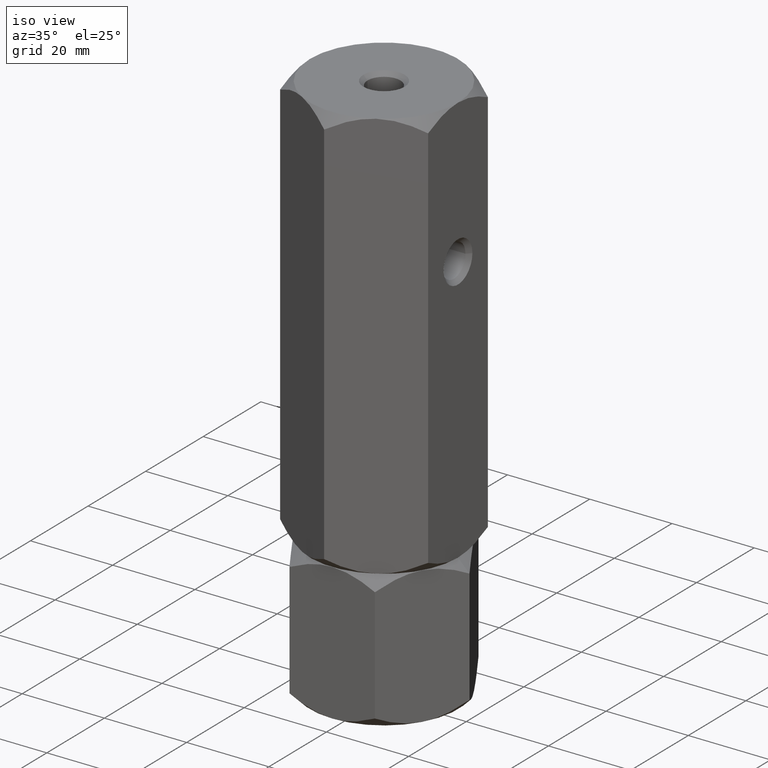
[diagram: clean part render]
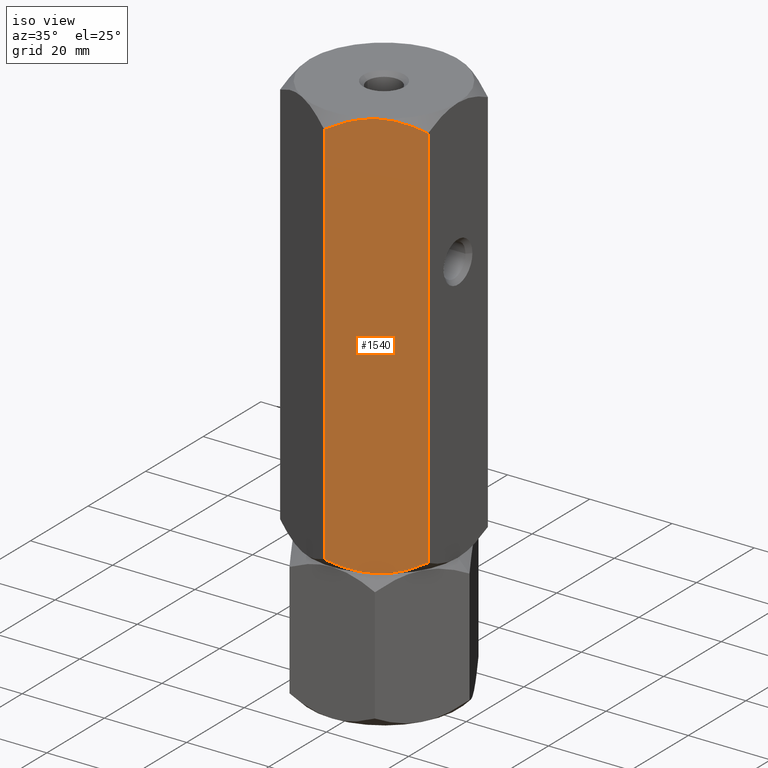
[diagram: same view with one face highlighted and labeled with its STEP entity id]
A machine part, iso view. The second image highlights one B-rep face of the part: STEP entity #1540.
In plain terms, the highlighted planar face has unit normal (-0.5, 0.866, 0).
Its self-contained STEP definition (entity closure, byte-faithful):
#10 = CARTESIAN_POINT ( 'NONE',  ( 15.14539811114618750, -12.04041001437223102, 34.61071641122316578 ) ) ;
#29 = ORIENTED_EDGE ( 'NONE', *, *, #1813, .F. ) ;
#61 = B_SPLINE_CURVE_WITH_KNOTS ( 'NONE', 3,
 ( #708, #1982, #1191, #900, #1354, #1508, #1673, #106, #85, #585 ),
 .UNSPECIFIED., .F., .F.,
 ( 4, 2, 2, 2, 4 ),
 ( 2.544307986837308371E-07, 0.005386537354063076870, 0.008079678815695273339, 0.009426249546511372007, 0.01077282027732746894 ),
 .UNSPECIFIED. ) ;
#66 = VECTOR ( 'NONE', #655, 1000.000000000000000 ) ;
#85 = CARTESIAN_POINT ( 'NONE',  ( 8.605874323383771340, -15.81600583360882872, 133.3333333333333428 ) ) ;
#87 = FACE_OUTER_BOUND ( 'NONE', #443, .T. ) ;
#106 = CARTESIAN_POINT ( 'NONE',  ( 8.209538469370119884, -16.04483044561310479, 133.3160004768592444 ) ) ;
#210 = CARTESIAN_POINT ( 'NONE',  ( 8.999999999999996447, -15.58845726811990140, 33.33333333333330017 ) ) ;
#242 = VERTEX_POINT ( 'NONE', #917 ) ;
#262 = CARTESIAN_POINT ( 'NONE',  ( 18.00000000000000355, -10.39230484541326938, 36.11794302415982116 ) ) ;
#287 = ORIENTED_EDGE ( 'NONE', *, *, #1914, .F. ) ;
#288 = EDGE_CURVE ( 'NONE', #1229, #242, #61, .T. ) ;
#315 = VERTEX_POINT ( 'NONE', #262 ) ;
#435 = ORIENTED_EDGE ( 'NONE', *, *, #501, .T. ) ;
#443 = EDGE_LOOP ( 'NONE', ( #1051, #435, #287, #29, #946, #762 ) ) ;
#482 = CARTESIAN_POINT ( 'NONE',  ( 12.14199022028319774, -13.77442836864822517, 33.67389643558856704 ) ) ;
#500 = CARTESIAN_POINT ( 'NONE',  ( 15.13928418966203360, -12.04393988858691067, 132.0607586318289748 ) ) ;
#501 = EDGE_CURVE ( 'NONE', #1229, #523, #541, .T. ) ;
#510 = B_SPLINE_CURVE_WITH_KNOTS ( 'NONE', 3,
 ( #835, #997, #1793, #868, #846, #709 ),
 .UNSPECIFIED., .F., .F.,
 ( 4, 2, 4 ),
 ( 0.01077282027732747761, 0.01612137750481874160, 0.02146993473231000732 ),
 .UNSPECIFIED. ) ;
#523 = VERTEX_POINT ( 'NONE', #1977 ) ;
#540 = EDGE_CURVE ( 'NONE', #242, #1412, #838, .T. ) ;
#541 = LINE ( 'NONE', #1503, #1965 ) ;
#572 = CARTESIAN_POINT ( 'NONE',  ( 8.999999999999996447, -15.58845726811990140, 33.33333333333330017 ) ) ;
#585 = CARTESIAN_POINT ( 'NONE',  ( 8.999999999999994671, -15.58845726811989785, 133.3333333333333144 ) ) ;
#590 = EDGE_CURVE ( 'NONE', #1412, #315, #648, .T. ) ;
#604 = CARTESIAN_POINT ( 'NONE',  ( 10.58425150785353885, -14.67378923359658494, 33.42028022345144933 ) ) ;
#642 = CARTESIAN_POINT ( 'NONE',  ( 12.90267270303527525, -13.33524813246348018, 33.87041888916230903 ) ) ;
#648 = LINE ( 'NONE', #1768, #66 ) ;
#655 = DIRECTION ( 'NONE',  ( -0.000000000000000000, -0.000000000000000000, -1.000000000000000000 ) ) ;
#708 = CARTESIAN_POINT ( 'NONE',  ( -6.297340013485389316E-15, -20.78460969082653165, 130.5487236425067863 ) ) ;
#709 = CARTESIAN_POINT ( 'NONE',  ( -3.379014044959083873E-15, -20.78460969082652809, 36.11794302415981406 ) ) ;
#762 = ORIENTED_EDGE ( 'NONE', *, *, #540, .F. ) ;
#815 = CARTESIAN_POINT ( 'NONE',  ( 16.59030399953601531, -11.20619321075669816, 131.3626120078502595 ) ) ;
#835 = CARTESIAN_POINT ( 'NONE',  ( 8.999999999999996447, -15.58845726811990140, 33.33333333333330017 ) ) ;
#838 = B_SPLINE_CURVE_WITH_KNOTS ( 'NONE', 3,
 ( #1809, #1151, #1821, #500, #815, #1463 ),
 .UNSPECIFIED., .F., .F.,
 ( 4, 2, 4 ),
 ( 0.01077282027732746894, 0.01612137750481873466, 0.02146993473230999691 ),
 .UNSPECIFIED. ) ;
#846 = CARTESIAN_POINT ( 'NONE',  ( 1.409696000463980914, -19.97072132548311174, 35.30405465881634797 ) ) ;
#868 = CARTESIAN_POINT ( 'NONE',  ( 2.860715810337960185, -19.13297464765288325, 34.60590803483753319 ) ) ;
#900 = CARTESIAN_POINT ( 'NONE',  ( 5.097327296964715870, -17.84166640377631907, 132.7962477775043055 ) ) ;
#917 = CARTESIAN_POINT ( 'NONE',  ( 8.999999999999994671, -15.58845726811989785, 133.3333333333333144 ) ) ;
#946 = ORIENTED_EDGE ( 'NONE', *, *, #590, .F. ) ;
#997 = CARTESIAN_POINT ( 'NONE',  ( 7.434539168300452694, -16.49227650070744744, 33.33333333333330017 ) ) ;
#1008 = AXIS2_PLACEMENT_3D ( 'NONE', #1699, #1828, #1664 ) ;
#1051 = ORIENTED_EDGE ( 'NONE', *, *, #288, .F. ) ;
#1066 = PLANE ( 'NONE',  #1008 ) ;
#1124 = CARTESIAN_POINT ( 'NONE',  ( 18.00000000000000355, -10.39230484541327115, 130.5487236425067863 ) ) ;
#1133 = CARTESIAN_POINT ( 'NONE',  ( 10.97671975407794953, -14.44719758599054238, 33.47205593243187138 ) ) ;
#1144 = CARTESIAN_POINT ( 'NONE',  ( 16.58866960374795951, -11.20713682960488988, 35.30311103996820776 ) ) ;
#1151 = CARTESIAN_POINT ( 'NONE',  ( 10.56546083169953398, -14.68463803553235358, 133.3333333333332860 ) ) ;
#1191 = CARTESIAN_POINT ( 'NONE',  ( 2.854601888853805836, -19.13650452186756823, 132.0559502554434061 ) ) ;
#1229 = VERTEX_POINT ( 'NONE', #1431 ) ;
#1354 = CARTESIAN_POINT ( 'NONE',  ( 5.858009779716792487, -17.40248616759157940, 132.9927702310780262 ) ) ;
#1359 = DIRECTION ( 'NONE',  ( -0.000000000000000000, -0.000000000000000000, -1.000000000000000000 ) ) ;
#1412 = VERTEX_POINT ( 'NONE', #1124 ) ;
#1431 = CARTESIAN_POINT ( 'NONE',  ( -6.297340013485389316E-15, -20.78460969082653165, 130.5487236425067863 ) ) ;
#1444 = CARTESIAN_POINT ( 'NONE',  ( 18.00000000000000355, -10.39230484541326938, 36.11794302415982116 ) ) ;
#1463 = CARTESIAN_POINT ( 'NONE',  ( 18.00000000000000355, -10.39230484541327115, 130.5487236425067863 ) ) ;
#1503 = CARTESIAN_POINT ( 'NONE',  ( -2.998680872865238938E-15, -20.78460969082652809, 133.3333333333333144 ) ) ;
#1508 = CARTESIAN_POINT ( 'NONE',  ( 7.023280245922038034, -16.72971695024925864, 133.1946107342347148 ) ) ;
#1540 = ADVANCED_FACE ( 'NONE', ( #87 ), #1066, .F. ) ;
#1541 = CARTESIAN_POINT ( 'NONE',  ( 9.790461530629871234, -15.13208409062669801, 33.35066618980737019 ) ) ;
#1664 = DIRECTION ( 'NONE',  ( -0.8660254037844388186, -0.4999999999999996114, 0.000000000000000000 ) ) ;
#1668 = VERTEX_POINT ( 'NONE', #210 ) ;
#1673 = CARTESIAN_POINT ( 'NONE',  ( 7.415748492146449600, -16.50312530264321609, 133.2463864432151297 ) ) ;
#1685 = B_SPLINE_CURVE_WITH_KNOTS ( 'NONE', 3,
 ( #1444, #1144, #10, #642, #482, #1133, #604, #1541, #1737, #572 ),
 .UNSPECIFIED., .F., .F.,
 ( 4, 2, 2, 2, 4 ),
 ( 2.544307986796311447E-07, 0.005386537354063079472, 0.008079678815695276808, 0.009426249546511377211, 0.01077282027732747761 ),
 .UNSPECIFIED. ) ;
#1699 = CARTESIAN_POINT ( 'NONE',  ( -2.998680872865238938E-15, -20.78460969082652809, 133.3333333333333144 ) ) ;
#1737 = CARTESIAN_POINT ( 'NONE',  ( 9.394125676616221554, -15.36090870263097585, 33.33333333333330017 ) ) ;
#1768 = CARTESIAN_POINT ( 'NONE',  ( 18.00000000000000355, -10.39230484541326938, 133.3333333333333144 ) ) ;
#1793 = CARTESIAN_POINT ( 'NONE',  ( 5.895697476400517445, -17.38072716576609622, 33.60972924045488952 ) ) ;
#1809 = CARTESIAN_POINT ( 'NONE',  ( 8.999999999999994671, -15.58845726811989785, 133.3333333333333144 ) ) ;
#1813 = EDGE_CURVE ( 'NONE', #315, #1668, #1685, .T. ) ;
#1821 = CARTESIAN_POINT ( 'NONE',  ( 12.10430252359947900, -13.79618737047371013, 133.0569374262117606 ) ) ;
#1828 = DIRECTION ( 'NONE',  ( -0.4999999999999996114, 0.8660254037844388186, 0.000000000000000000 ) ) ;
#1914 = EDGE_CURVE ( 'NONE', #1668, #523, #510, .T. ) ;
#1965 = VECTOR ( 'NONE', #1359, 1000.000000000000000 ) ;
#1977 = CARTESIAN_POINT ( 'NONE',  ( -3.379014044959083873E-15, -20.78460969082652809, 36.11794302415981406 ) ) ;
#1982 = CARTESIAN_POINT ( 'NONE',  ( 1.411330396252042485, -19.96977770663490048, 131.3635556266983428 ) ) ;